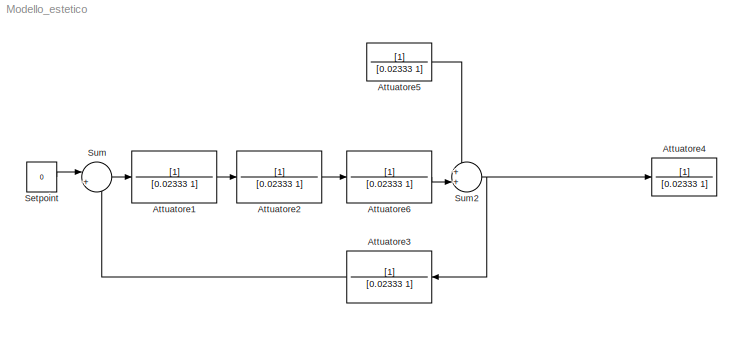
MODEL Modello_estetico
KIND model
BLOCK [TransferFcn] Attuatore1
  Denominator = [0.02333 1]
  SID = 30
BLOCK [TransferFcn] Attuatore2
  Denominator = [0.02333 1]
  SID = 26
BLOCK [TransferFcn] Attuatore3
  Denominator = [0.02333 1]
  SID = 32
BLOCK [TransferFcn] Attuatore4
  Denominator = [0.02333 1]
  SID = 29
BLOCK [TransferFcn] Attuatore5
  Denominator = [0.02333 1]
  SID = 31
BLOCK [TransferFcn] Attuatore6
  Denominator = [0.02333 1]
  SID = 33
BLOCK [Constant] Setpoint
  SID = 14
  Value = 0
BLOCK [Sum] Sum
  IconShape = round
  InputSameDT = off
  Inputs = |+-
  OutDataTypeStr = Inherit: Inherit via internal rule
  Ports = [2, 1]
  SID = 16
  SaturateOnIntegerOverflow = off
BLOCK [Sum] Sum2
  IconShape = round
  InputSameDT = off
  Inputs = ++|
  OutDataTypeStr = Inherit: Inherit via internal rule
  Ports = [2, 1]
  SID = 27
  SaturateOnIntegerOverflow = off
LINE Attuatore1:1 -> Attuatore2:1
LINE Attuatore2:1 -> Attuatore6:1
LINE Attuatore3:1 -> Sum:2
LINE Attuatore5:1 -> Sum2:1
LINE Attuatore6:1 -> Sum2:2
LINE Setpoint:1 -> Sum:1
NET Sum2:1 -> Attuatore3:1, Attuatore4:1
LINE Sum:1 -> Attuatore1:1
note: NET lines group one-source signal fan-out (src -> all destinations, sorted); 1:1 wires keep LINE
